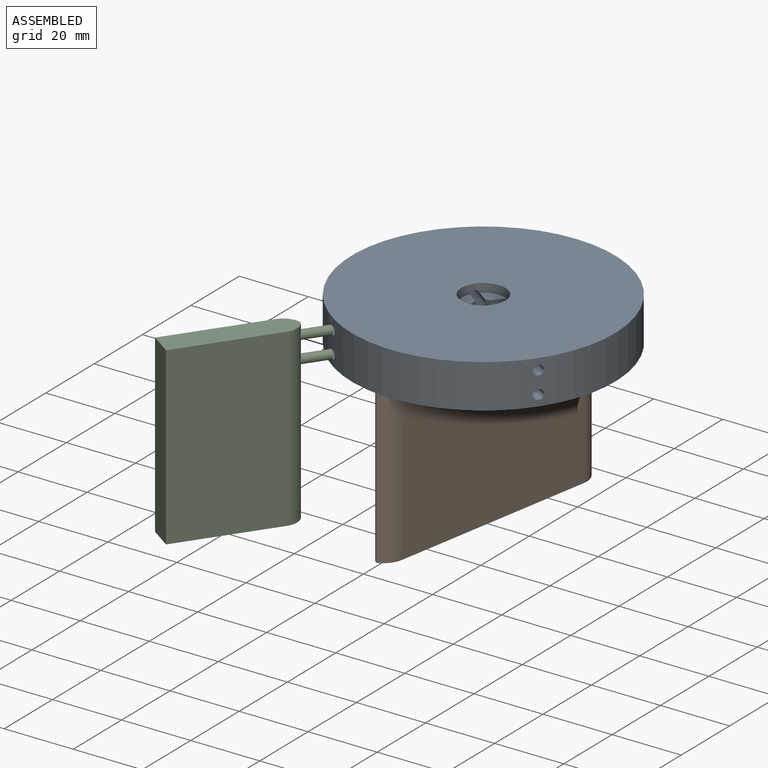
[diagram: assembled view]
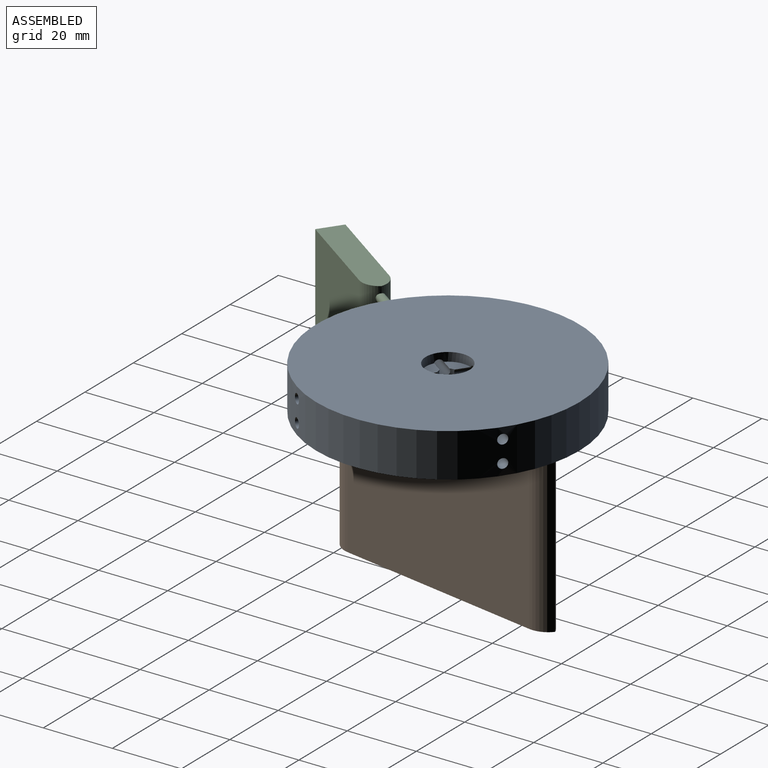
[diagram: assembled view, second angle]
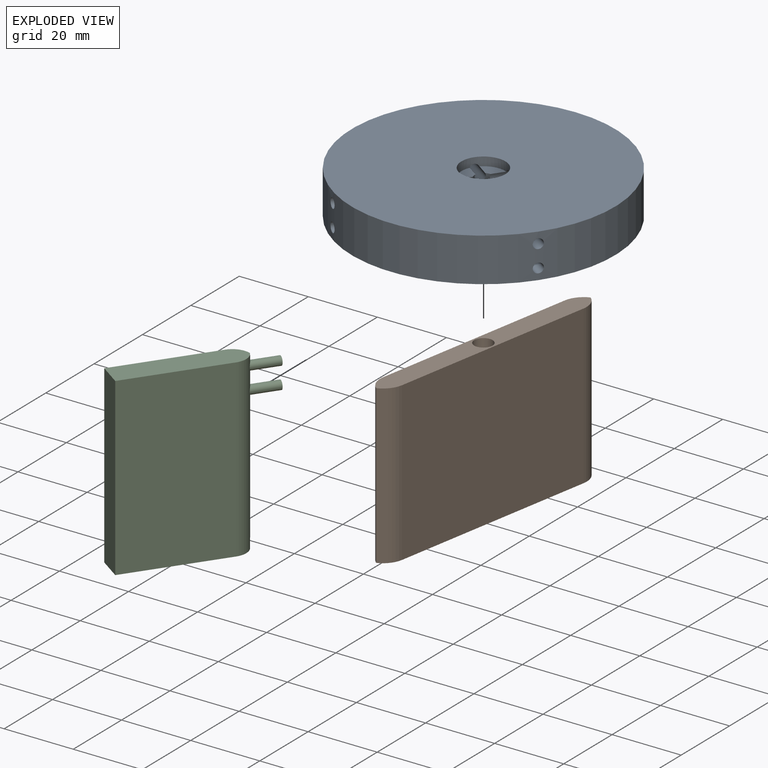
[diagram: exploded view]
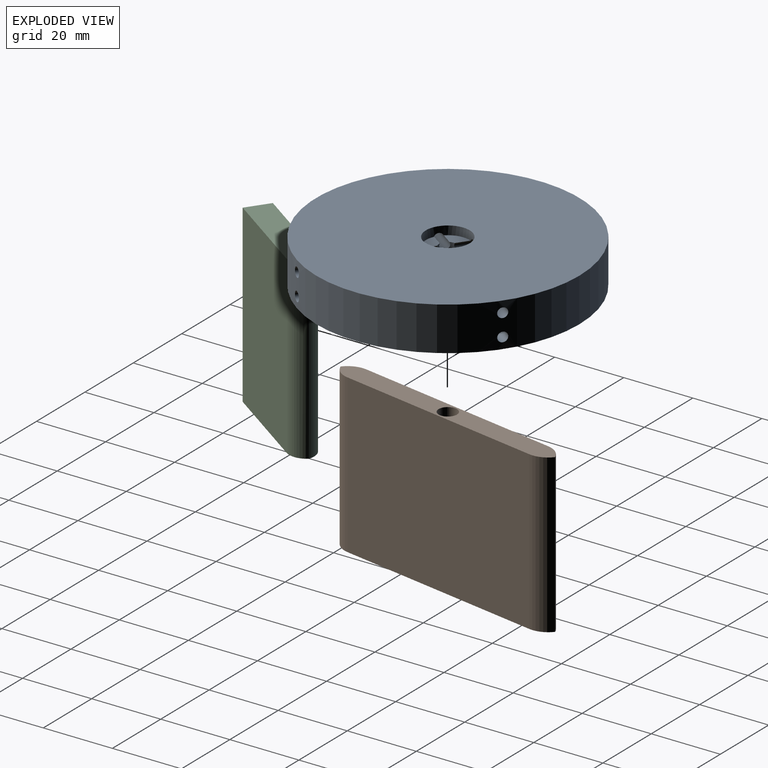
[diagram: exploded view, second angle]
ASSEMBLY  parts=3 mates=2
PART A: 17 faces, bbox 76.2x76.2x12.7 mm
  f0: cylinder r=1.4mm len=35.98mm, axis (0,-1,0), area 301.9mm2, adj f4,f11,f12,f13,f16
  f1: cylinder r=1.4mm len=35.98mm, axis (0,-1,0), area 301.9mm2, adj f4,f11,f14,f15,f16
  f2: cylinder r=1.4mm len=35.98mm, axis (1,0,0), area 301.9mm2, adj f4,f11,f13,f15,f16
  f3: cylinder r=1.4mm len=35.98mm, axis (1,0,0), area 301.9mm2, adj f4,f11,f12,f14,f16
  f4: cylinder r=38.1mm len=76.2mm, axis (0,0,1), area 2991.2mm2, adj f0,f1,f2,f3,f5,f6,f7,f8
  f5: cylinder r=1.4mm len=35.98mm, axis (0,-1,0), area 313.8mm2, adj f4,f16
  f6: cylinder r=1.4mm len=35.98mm, axis (0,-1,0), area 313.8mm2, adj f4,f16
  f7: plane 76.2x76.2mm, normal (0,0,-1), area 4540.1mm2, adj f4,f16
  f8: plane 76.2x76.2mm, normal (0,0,1), area 4433.7mm2, adj f4,f11
  f9: cylinder r=1.4mm len=35.98mm, axis (1,0,0), area 313.8mm2, adj f4,f16
  f10: cylinder r=1.4mm len=35.98mm, axis (1,0,0), area 313.8mm2, adj f4,f16
  f11: cylinder r=6.35mm len=12.7mm, axis (0,0,1), area 95.9mm2, adj f0,f1,f2,f3,f8,f12,f13,f14
  f12: plane 4.98x4.98mm, normal (0,0,1), area 17mm2, adj f0,f3,f11,f16
  f13: plane 4.98x4.98mm, normal (0,0,1), area 17mm2, adj f0,f2,f11,f16
  f14: plane 4.98x4.98mm, normal (0,0,1), area 17mm2, adj f1,f3,f11,f16
  f15: plane 4.98x4.98mm, normal (0,0,1), area 17mm2, adj f1,f2,f11,f16
  f16: cylinder r=2.54mm len=10.16mm, axis (0,0,1), area 116.5mm2, adj f0,f1,f2,f3,f5,f6,f7,f9
PART B: 20 faces, bbox 72x6.4x45.7 mm
  f0: plane 60.96x45.72mm, normal (0,1,0), area 2787.1mm2, adj f2,f3,f7,f8
  f1: plane 60.96x45.72mm, normal (0,-1,0), area 2787.1mm2, adj f2,f3,f6,f9
  f2: plane 71.96x6.35mm, normal (0,0,-1), area 379.6mm2, adj f0,f1,f6,f7,f8,f9,f10,f12
  f3: plane 71.96x6.35mm, normal (0,0,1), area 414.3mm2, adj f0,f1,f4,f6,f7,f8,f9
  f4: cylinder r=2.67mm len=19.05mm, axis (0,0,1), area 319.2mm2, adj f3,f5
  f5: plane 5.33x5.33mm, normal (0,0,1), area 22.3mm2, adj f4
  f6: cylinder r=6.35mm len=45.72mm, axis (0,0,1), area 304mm2, adj f1,f2,f3,f7
  f7: cylinder r=6.35mm len=45.72mm, axis (0,0,-1), area 304mm2, adj f0,f2,f3,f6
  f8: cylinder r=6.35mm len=45.72mm, axis (0,0,1), area 304mm2, adj f0,f2,f3,f9
  f9: cylinder r=6.35mm len=45.72mm, axis (0,0,-1), area 304mm2, adj f1,f2,f3,f8
  f10: cylinder r=1.91mm len=3.81mm, axis (0,0,-1), area 45.6mm2, adj f2,f11
  f11: plane 3.81x3.81mm, normal (0,0,-1), area 11.4mm2, adj f10
  f12: cylinder r=1.91mm len=3.81mm, axis (0,0,-1), area 45.6mm2, adj f2,f13
  f13: plane 3.81x3.81mm, normal (0,0,-1), area 11.4mm2, adj f12
  f14: cylinder r=1.91mm len=3.81mm, axis (0,0,-1), area 45.6mm2, adj f2,f15
  f15: plane 3.81x3.81mm, normal (0,0,-1), area 11.4mm2, adj f14
  f16: cylinder r=1.91mm len=3.81mm, axis (0,0,-1), area 45.6mm2, adj f2,f17
  f17: plane 3.81x3.81mm, normal (0,0,-1), area 11.4mm2, adj f16
  f18: cylinder r=1.91mm len=3.81mm, axis (0,0,-1), area 45.6mm2, adj f2,f19
  f19: plane 3.81x3.81mm, normal (0,0,-1), area 11.4mm2, adj f18
PART C: 11 faces, bbox 43.2x7.6x50.8 mm
  f0: plane 35.4x7.62mm, normal (0,0,1), area 260mm2, adj f2,f3,f4,f9,f10
  f1: plane 35.4x7.62mm, normal (0,0,-1), area 260mm2, adj f2,f3,f4,f9,f10
  f2: plane 50.8x7.62mm, normal (1,0,0), area 387.1mm2, adj f0,f1,f3,f4
  f3: plane 50.8x30.48mm, normal (0,-1,0), area 1548.4mm2, adj f0,f1,f2,f9
  f4: plane 50.8x30.48mm, normal (0,1,0), area 1548.4mm2, adj f0,f1,f2,f10
  f5: cylinder r=1.27mm len=8.3mm, axis (1,0,0), area 64.5mm2, adj f6,f9,f10
  f6: plane 2.54x2.54mm, normal (-1,0,0), area 5.1mm2, adj f5
  f7: cylinder r=1.27mm len=8.3mm, axis (1,0,0), area 64.5mm2, adj f8,f9,f10
  f8: plane 2.54x2.54mm, normal (-1,0,0), area 5.1mm2, adj f7
  f9: cylinder r=5.08mm len=50.8mm, axis (0,0,1), area 334.7mm2, adj f0,f1,f3,f5,f7,f10
  f10: cylinder r=5.08mm len=50.8mm, axis (0,0,-1), area 334.7mm2, adj f0,f1,f4,f5,f7,f9
PLACE A rot(axis=(0,0,-1),35deg) t=(-142.84,-114.88,220.67)mm
PLACE B rot(axis=(0,0,-1),100deg) t=(-142.84,-114.88,207.97)mm
PLACE C rot(axis=(0,0,-1),125deg) t=(-166.07,-154.7,220.67)mm
MATE cylindrical C.f5 <-> A.f0  axis (0.57,0.82,0) through (-164.82,-146.27,217.49)mm
MATE revolute B.f4 <-> A.f4  axis (0,0,1) through (-142.84,-114.88,207.97)mm
